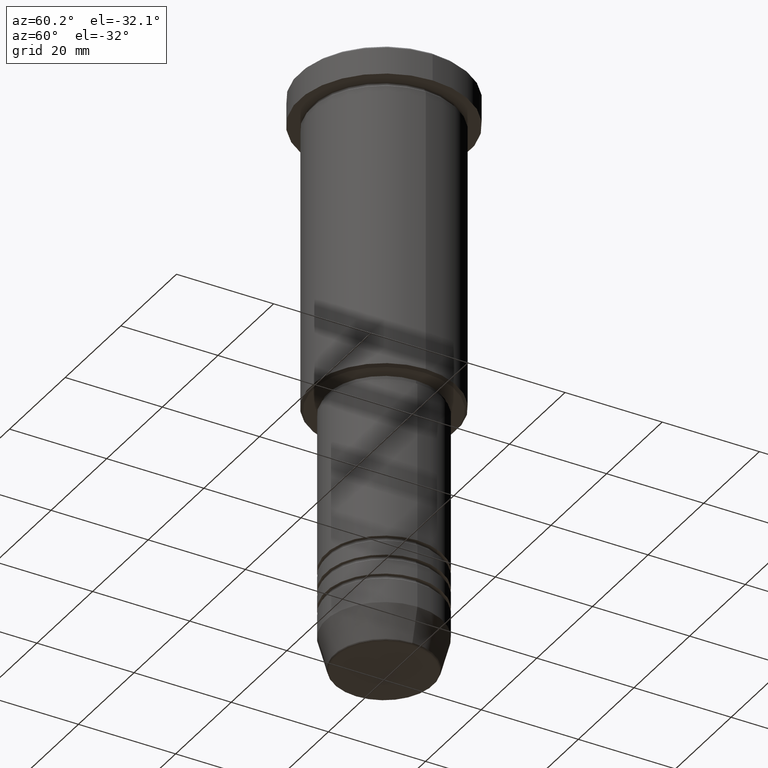
[diagram: clean part render]
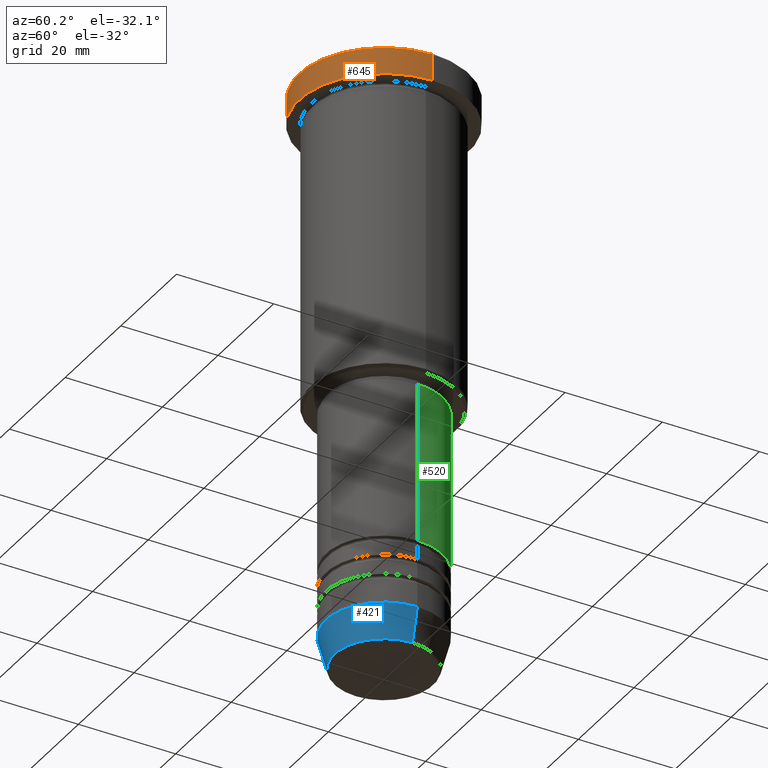
[diagram: same view with three faces highlighted in distinct colors, each labeled with its STEP entity id]
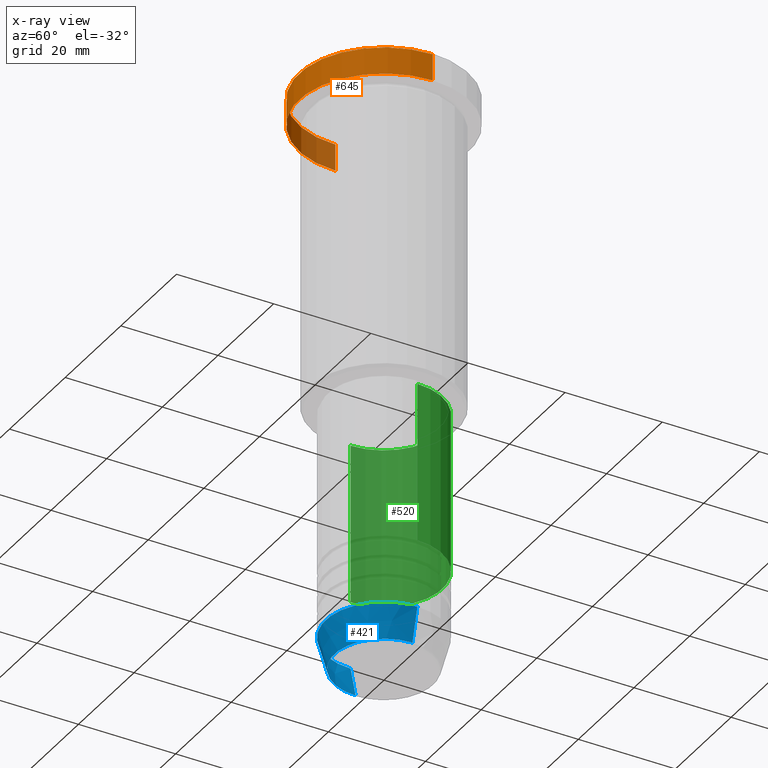
[diagram: x-ray of the same camera — body ghosted, the three highlighted faces saturated]
A machine part, auxiliary view with three faces highlighted in distinct colors.
The next image is the same camera in x-ray (body ghosted, the three faces saturated) — at least one of them is partly hidden behind the body in this view.
Their STEP definitions:

[orange] entity #645 — the highlighted cylindrical surface (partial cylindrical patch) has radius 17.5 mm, axis along (-0, -0, 1).
#5 = AXIS2_PLACEMENT_3D ( 'NONE', #227, #154, #48 ) ;
#37 = CARTESIAN_POINT ( 'NONE',  ( -17.50000000000000000, 2.143131898507868248E-15, -5.999999999999995559 ) ) ;
#48 = DIRECTION ( 'NONE',  ( 1.000000000000000000, 0.000000000000000000, 0.000000000000000000 ) ) ;
#68 = CIRCLE ( 'NONE', #495, 17.50000000000000000 ) ;
#97 = EDGE_CURVE ( 'NONE', #532, #804, #1041, .T. ) ;
#98 = LINE ( 'NONE', #272, #947 ) ;
#154 = DIRECTION ( 'NONE',  ( 0.000000000000000000, 0.000000000000000000, -1.000000000000000000 ) ) ;
#209 = CARTESIAN_POINT ( 'NONE',  ( -17.50000000000000000, 2.143131898507868248E-15, 0.000000000000000000 ) ) ;
#220 = ORIENTED_EDGE ( 'NONE', *, *, #97, .T. ) ;
#223 = AXIS2_PLACEMENT_3D ( 'NONE', #830, #731, #277 ) ;
#227 = CARTESIAN_POINT ( 'NONE',  ( 0.000000000000000000, 0.000000000000000000, -0.4999999999999864553 ) ) ;
#237 = CARTESIAN_POINT ( 'NONE',  ( 17.50000000000000000, 0.000000000000000000, -0.4999999999999864553 ) ) ;
#238 = EDGE_LOOP ( 'NONE', ( #1020, #879, #604, #220 ) ) ;
#253 = EDGE_CURVE ( 'NONE', #831, #1051, #68, .T. ) ;
#271 = CARTESIAN_POINT ( 'NONE',  ( 0.000000000000000000, 0.000000000000000000, -5.999999999999995559 ) ) ;
#272 = CARTESIAN_POINT ( 'NONE',  ( 17.50000000000000000, 0.000000000000000000, 0.000000000000000000 ) ) ;
#277 = DIRECTION ( 'NONE',  ( 1.000000000000000000, 0.000000000000000000, 0.000000000000000000 ) ) ;
#370 = DIRECTION ( 'NONE',  ( -0.000000000000000000, -0.000000000000000000, 1.000000000000000000 ) ) ;
#380 = DIRECTION ( 'NONE',  ( -0.000000000000000000, -0.000000000000000000, 1.000000000000000000 ) ) ;
#495 = AXIS2_PLACEMENT_3D ( 'NONE', #271, #909, #539 ) ;
#532 = VERTEX_POINT ( 'NONE', #237 ) ;
#539 = DIRECTION ( 'NONE',  ( 1.000000000000000000, 0.000000000000000000, 0.000000000000000000 ) ) ;
#604 = ORIENTED_EDGE ( 'NONE', *, *, #690, .T. ) ;
#645 = ADVANCED_FACE ( 'NONE', ( #808 ), #1008, .T. ) ;
#667 = CARTESIAN_POINT ( 'NONE',  ( -17.50000000000000000, 2.143131898507868248E-15, -0.4999999999999864553 ) ) ;
#690 = EDGE_CURVE ( 'NONE', #1051, #532, #98, .T. ) ;
#731 = DIRECTION ( 'NONE',  ( -0.000000000000000000, -0.000000000000000000, 1.000000000000000000 ) ) ;
#804 = VERTEX_POINT ( 'NONE', #667 ) ;
#808 = FACE_OUTER_BOUND ( 'NONE', #238, .T. ) ;
#830 = CARTESIAN_POINT ( 'NONE',  ( 0.000000000000000000, 0.000000000000000000, 0.000000000000000000 ) ) ;
#831 = VERTEX_POINT ( 'NONE', #37 ) ;
#879 = ORIENTED_EDGE ( 'NONE', *, *, #253, .T. ) ;
#909 = DIRECTION ( 'NONE',  ( -0.000000000000000000, -0.000000000000000000, 1.000000000000000000 ) ) ;
#911 = VECTOR ( 'NONE', #380, 1000.000000000000000 ) ;
#913 = EDGE_CURVE ( 'NONE', #831, #804, #919, .T. ) ;
#919 = LINE ( 'NONE', #209, #911 ) ;
#947 = VECTOR ( 'NONE', #370, 1000.000000000000000 ) ;
#968 = CARTESIAN_POINT ( 'NONE',  ( 17.50000000000000000, 0.000000000000000000, -5.999999999999995559 ) ) ;
#1008 = CYLINDRICAL_SURFACE ( 'NONE', #223, 17.50000000000000000 ) ;
#1020 = ORIENTED_EDGE ( 'NONE', *, *, #913, .F. ) ;
#1041 = CIRCLE ( 'NONE', #5, 17.50000000000000000 ) ;
#1051 = VERTEX_POINT ( 'NONE', #968 ) ;

[blue] entity #421 — the highlighted conical surface has half-angle 15 deg.
#27 = ORIENTED_EDGE ( 'NONE', *, *, #959, .F. ) ;
#46 = DIRECTION ( 'NONE',  ( 1.000000000000000000, 0.000000000000000000, 0.000000000000000000 ) ) ;
#47 = AXIS2_PLACEMENT_3D ( 'NONE', #1030, #856, #319 ) ;
#56 = EDGE_CURVE ( 'NONE', #1061, #1011, #944, .T. ) ;
#259 = VECTOR ( 'NONE', #799, 1000.000000000000000 ) ;
#282 = VECTOR ( 'NONE', #938, 1000.000000000000000 ) ;
#288 = CARTESIAN_POINT ( 'NONE',  ( 0.000000000000000000, 0.000000000000000000, -120.6294095225512564 ) ) ;
#291 = FACE_OUTER_BOUND ( 'NONE', #382, .T. ) ;
#319 = DIRECTION ( 'NONE',  ( 1.000000000000000000, 0.000000000000000000, 0.000000000000000000 ) ) ;
#348 = VERTEX_POINT ( 'NONE', #1007 ) ;
#381 = EDGE_CURVE ( 'NONE', #1011, #348, #999, .T. ) ;
#382 = EDGE_LOOP ( 'NONE', ( #1040, #443, #893, #27 ) ) ;
#391 = VERTEX_POINT ( 'NONE', #1084 ) ;
#421 = ADVANCED_FACE ( 'NONE', ( #291 ), #568, .T. ) ;
#443 = ORIENTED_EDGE ( 'NONE', *, *, #56, .T. ) ;
#568 = CONICAL_SURFACE ( 'NONE', #47, 12.00000000000000000, 0.2617993877991500740 ) ;
#579 = LINE ( 'NONE', #934, #282 ) ;
#654 = DIRECTION ( 'NONE',  ( 1.000000000000000000, 0.000000000000000000, 0.000000000000000000 ) ) ;
#674 = CARTESIAN_POINT ( 'NONE',  ( -10.22365507213718949, 1.360806402472382744E-15, -120.6294095225512564 ) ) ;
#718 = CARTESIAN_POINT ( 'NONE',  ( 12.00000000000000000, 0.000000000000000000, -114.0000000000000000 ) ) ;
#772 = DIRECTION ( 'NONE',  ( -0.000000000000000000, -0.000000000000000000, 1.000000000000000000 ) ) ;
#799 = DIRECTION ( 'NONE',  ( 0.2588190451025213501, 0.000000000000000000, 0.9659258262890680902 ) ) ;
#856 = DIRECTION ( 'NONE',  ( -0.000000000000000000, -0.000000000000000000, 1.000000000000000000 ) ) ;
#887 = AXIS2_PLACEMENT_3D ( 'NONE', #1133, #772, #46 ) ;
#893 = ORIENTED_EDGE ( 'NONE', *, *, #381, .T. ) ;
#922 = EDGE_CURVE ( 'NONE', #1061, #391, #579, .T. ) ;
#923 = AXIS2_PLACEMENT_3D ( 'NONE', #288, #1112, #654 ) ;
#934 = CARTESIAN_POINT ( 'NONE',  ( -12.00000000000000000, 1.469576158976823947E-15, -114.0000000000000000 ) ) ;
#938 = DIRECTION ( 'NONE',  ( -0.2588190451025213501, 3.169619151431772337E-17, 0.9659258262890680902 ) ) ;
#944 = CIRCLE ( 'NONE', #923, 10.22365507213718949 ) ;
#951 = CARTESIAN_POINT ( 'NONE',  ( 10.22365507213718949, 0.000000000000000000, -120.6294095225512564 ) ) ;
#959 = EDGE_CURVE ( 'NONE', #391, #348, #1119, .T. ) ;
#999 = LINE ( 'NONE', #718, #259 ) ;
#1007 = CARTESIAN_POINT ( 'NONE',  ( 12.00000000000000000, 0.000000000000000000, -114.0000000000000000 ) ) ;
#1011 = VERTEX_POINT ( 'NONE', #951 ) ;
#1030 = CARTESIAN_POINT ( 'NONE',  ( 0.000000000000000000, 0.000000000000000000, -114.0000000000000000 ) ) ;
#1040 = ORIENTED_EDGE ( 'NONE', *, *, #922, .F. ) ;
#1061 = VERTEX_POINT ( 'NONE', #674 ) ;
#1084 = CARTESIAN_POINT ( 'NONE',  ( -12.00000000000000000, 1.469576158976823947E-15, -114.0000000000000000 ) ) ;
#1112 = DIRECTION ( 'NONE',  ( -0.000000000000000000, -0.000000000000000000, 1.000000000000000000 ) ) ;
#1119 = CIRCLE ( 'NONE', #887, 12.00000000000000000 ) ;
#1133 = CARTESIAN_POINT ( 'NONE',  ( 0.000000000000000000, 0.000000000000000000, -114.0000000000000000 ) ) ;

[green] entity #520 — the highlighted cylindrical surface (partial cylindrical patch) has radius 12 mm, axis along (-0, -0, 1).
#60 = CARTESIAN_POINT ( 'NONE',  ( 0.000000000000000000, 0.000000000000000000, -99.99999999999990052 ) ) ;
#104 = ORIENTED_EDGE ( 'NONE', *, *, #275, .F. ) ;
#111 = VECTOR ( 'NONE', #552, 1000.000000000000000 ) ;
#132 = EDGE_CURVE ( 'NONE', #707, #712, #621, .T. ) ;
#155 = FACE_OUTER_BOUND ( 'NONE', #1148, .T. ) ;
#188 = VECTOR ( 'NONE', #460, 1000.000000000000000 ) ;
#202 = AXIS2_PLACEMENT_3D ( 'NONE', #60, #236, #952 ) ;
#236 = DIRECTION ( 'NONE',  ( -0.000000000000000000, -0.000000000000000000, 1.000000000000000000 ) ) ;
#275 = EDGE_CURVE ( 'NONE', #945, #1086, #474, .T. ) ;
#310 = ORIENTED_EDGE ( 'NONE', *, *, #132, .T. ) ;
#317 = DIRECTION ( 'NONE',  ( -0.000000000000000000, -0.000000000000000000, 1.000000000000000000 ) ) ;
#324 = EDGE_CURVE ( 'NONE', #707, #945, #815, .T. ) ;
#338 = DIRECTION ( 'NONE',  ( -0.000000000000000000, -0.000000000000000000, 1.000000000000000000 ) ) ;
#361 = CARTESIAN_POINT ( 'NONE',  ( -12.00000000000000000, 1.469576158976823947E-15, -99.99999999999990052 ) ) ;
#387 = CARTESIAN_POINT ( 'NONE',  ( 12.00000000000000000, 0.000000000000000000, -67.00000000000000000 ) ) ;
#454 = AXIS2_PLACEMENT_3D ( 'NONE', #614, #317, #688 ) ;
#460 = DIRECTION ( 'NONE',  ( -0.000000000000000000, -0.000000000000000000, 1.000000000000000000 ) ) ;
#463 = LINE ( 'NONE', #802, #111 ) ;
#474 = CIRCLE ( 'NONE', #1116, 12.00000000000000000 ) ;
#486 = ORIENTED_EDGE ( 'NONE', *, *, #324, .F. ) ;
#520 = ADVANCED_FACE ( 'NONE', ( #155 ), #1161, .T. ) ;
#552 = DIRECTION ( 'NONE',  ( -0.000000000000000000, -0.000000000000000000, 1.000000000000000000 ) ) ;
#606 = CARTESIAN_POINT ( 'NONE',  ( -12.00000000000000000, 1.469576158976823947E-15, -67.00000000000000000 ) ) ;
#614 = CARTESIAN_POINT ( 'NONE',  ( 0.000000000000000000, 0.000000000000000000, 0.000000000000000000 ) ) ;
#621 = CIRCLE ( 'NONE', #202, 12.00000000000000000 ) ;
#688 = DIRECTION ( 'NONE',  ( 1.000000000000000000, 0.000000000000000000, 0.000000000000000000 ) ) ;
#707 = VERTEX_POINT ( 'NONE', #1099 ) ;
#712 = VERTEX_POINT ( 'NONE', #361 ) ;
#722 = ORIENTED_EDGE ( 'NONE', *, *, #1149, .T. ) ;
#730 = CARTESIAN_POINT ( 'NONE',  ( 0.000000000000000000, 0.000000000000000000, -67.00000000000000000 ) ) ;
#802 = CARTESIAN_POINT ( 'NONE',  ( -12.00000000000000000, 1.469576158976823947E-15, 0.000000000000000000 ) ) ;
#815 = LINE ( 'NONE', #988, #188 ) ;
#902 = DIRECTION ( 'NONE',  ( 1.000000000000000000, 0.000000000000000000, 0.000000000000000000 ) ) ;
#945 = VERTEX_POINT ( 'NONE', #387 ) ;
#952 = DIRECTION ( 'NONE',  ( 1.000000000000000000, 0.000000000000000000, 0.000000000000000000 ) ) ;
#988 = CARTESIAN_POINT ( 'NONE',  ( 12.00000000000000000, 0.000000000000000000, 0.000000000000000000 ) ) ;
#1086 = VERTEX_POINT ( 'NONE', #606 ) ;
#1099 = CARTESIAN_POINT ( 'NONE',  ( 12.00000000000000000, 0.000000000000000000, -99.99999999999990052 ) ) ;
#1116 = AXIS2_PLACEMENT_3D ( 'NONE', #730, #338, #902 ) ;
#1148 = EDGE_LOOP ( 'NONE', ( #310, #722, #104, #486 ) ) ;
#1149 = EDGE_CURVE ( 'NONE', #712, #1086, #463, .T. ) ;
#1161 = CYLINDRICAL_SURFACE ( 'NONE', #454, 12.00000000000000000 ) ;